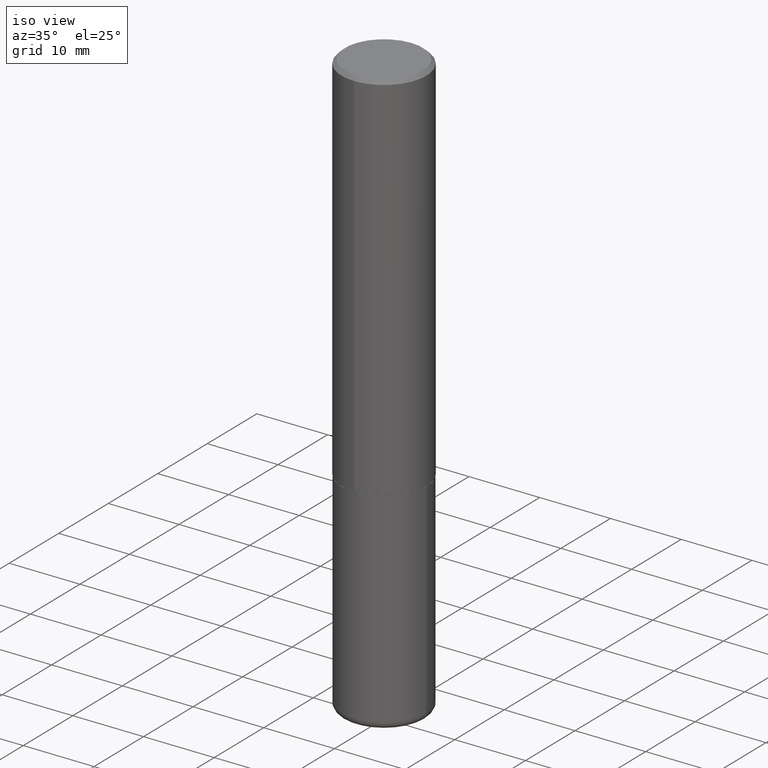
[diagram: clean part render]
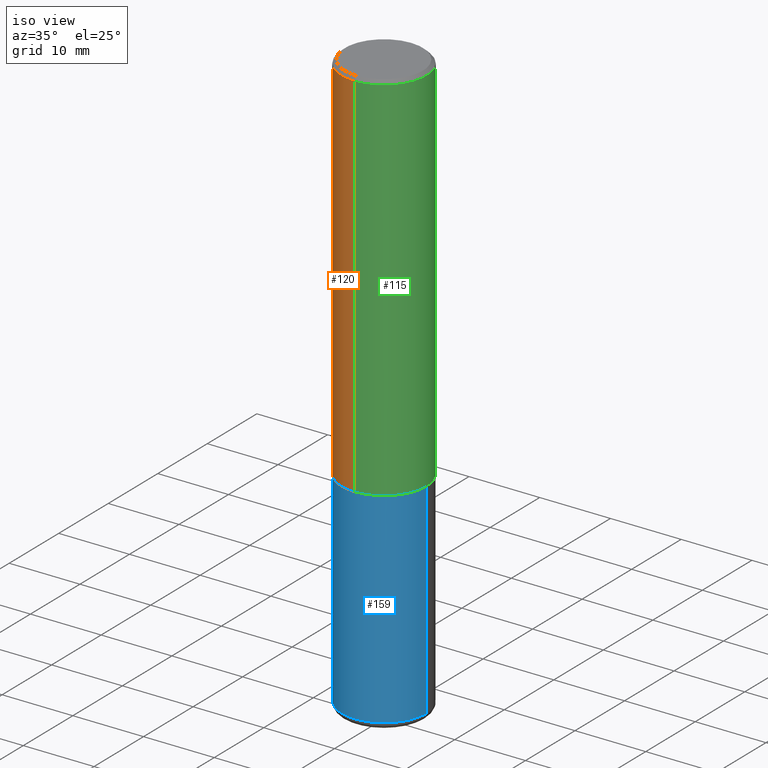
[diagram: same view with three faces highlighted in distinct colors, each labeled with its STEP entity id]
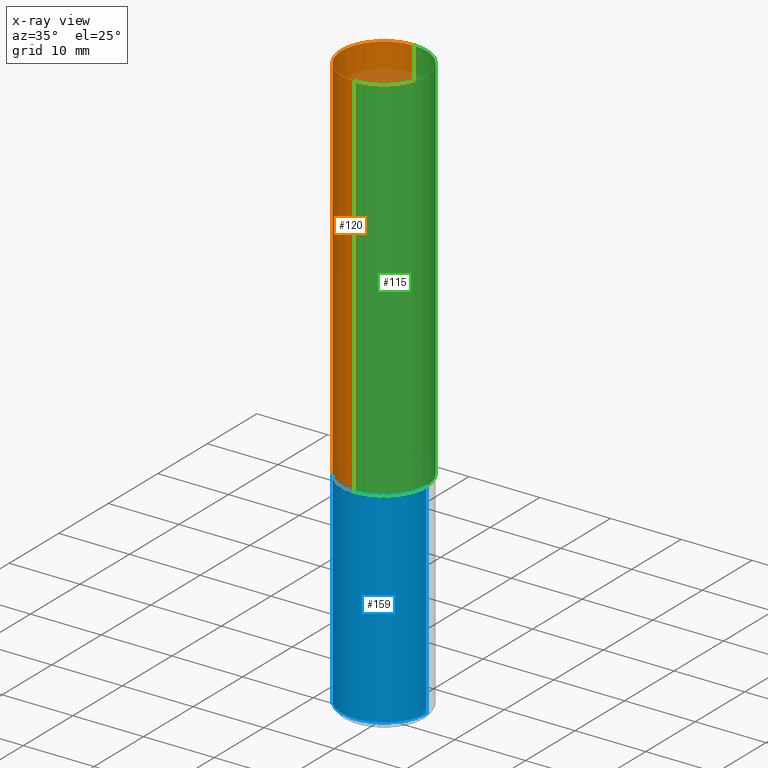
[diagram: x-ray of the same camera — body ghosted, the three highlighted faces saturated]
A machine part, iso view with three faces highlighted in distinct colors.
The next image is the same camera in x-ray (body ghosted, the three faces saturated) — at least one of them is partly hidden behind the body in this view.
Their STEP definitions:

[orange] entity #120 — the highlighted cylindrical surface (partial cylindrical patch) has radius 5.9995 mm, axis along (-0, 0, 1).
#21 = EDGE_CURVE ( 'NONE', #207, #164, #383, .T. ) ;
#44 = ORIENTED_EDGE ( 'NONE', *, *, #265, .F. ) ;
#46 = DIRECTION ( 'NONE',  ( -2.445143257281760563E-29, 3.491947543401872647E-15, 1.000000000000000000 ) ) ;
#56 = DIRECTION ( 'NONE',  ( -2.445143257281760843E-29, 3.491947543401873041E-15, 1.000000000000000000 ) ) ;
#84 = ORIENTED_EDGE ( 'NONE', *, *, #254, .T. ) ;
#98 = CARTESIAN_POINT ( 'NONE',  ( -1.649375784469446630E-15, -0.2362000000000075151, -2.085599999999999010 ) ) ;
#108 = VECTOR ( 'NONE', #313, 39.37007874015748143 ) ;
#114 = ORIENTED_EDGE ( 'NONE', *, *, #21, .T. ) ;
#120 = ADVANCED_FACE ( 'NONE', ( #156 ), #282, .T. ) ;
#123 = DIRECTION ( 'NONE',  ( -2.445143257281760563E-29, 3.491947543401872647E-15, 1.000000000000000000 ) ) ;
#156 = FACE_OUTER_BOUND ( 'NONE', #323, .T. ) ;
#162 = EDGE_CURVE ( 'NONE', #207, #271, #252, .T. ) ;
#164 = VERTEX_POINT ( 'NONE', #98 ) ;
#165 = VERTEX_POINT ( 'NONE', #287 ) ;
#168 = ORIENTED_EDGE ( 'NONE', *, *, #162, .F. ) ;
#179 = CARTESIAN_POINT ( 'NONE',  ( 0.000000000000000000, 0.000000000000000000, 0.000000000000000000 ) ) ;
#195 = CARTESIAN_POINT ( 'NONE',  ( 4.890286514563534438E-31, -6.983895086803762550E-17, -0.02000000000000005246 ) ) ;
#203 = VECTOR ( 'NONE', #56, 39.37007874015748143 ) ;
#207 = VERTEX_POINT ( 'NONE', #339 ) ;
#216 = CARTESIAN_POINT ( 'NONE',  ( -1.649375784469496722E-15, -0.2362000000000001043, 8.247980097515226939E-16 ) ) ;
#235 = DIRECTION ( 'NONE',  ( -2.445143257281760563E-29, 3.491947543401872647E-15, 1.000000000000000000 ) ) ;
#246 = CARTESIAN_POINT ( 'NONE',  ( 5.099590777386840224E-29, -7.282805796518945829E-15, -2.085599999999999898 ) ) ;
#249 = CARTESIAN_POINT ( 'NONE',  ( 1.678301941865357183E-15, 0.2362000000000001043, -8.247980097515226939E-16 ) ) ;
#252 = LINE ( 'NONE', #249, #108 ) ;
#254 = EDGE_CURVE ( 'NONE', #164, #165, #257, .T. ) ;
#257 = LINE ( 'NONE', #216, #203 ) ;
#259 = AXIS2_PLACEMENT_3D ( 'NONE', #246, #235, #302 ) ;
#265 = EDGE_CURVE ( 'NONE', #271, #165, #392, .T. ) ;
#271 = VERTEX_POINT ( 'NONE', #303 ) ;
#275 = DIRECTION ( 'NONE',  ( -6.982962677686265922E-15, -1.000000000000000000, 3.487819265831412139E-15 ) ) ;
#282 = CYLINDRICAL_SURFACE ( 'NONE', #353, 0.2362000000000001043 ) ;
#287 = CARTESIAN_POINT ( 'NONE',  ( -1.620449627073634881E-15, -0.2362000000000000210, -0.01999999999999922673 ) ) ;
#302 = DIRECTION ( 'NONE',  ( -6.982962677686265922E-15, -1.000000000000000000, 3.469747663417773452E-15 ) ) ;
#303 = CARTESIAN_POINT ( 'NONE',  ( 1.649375784469496131E-15, 0.2361999999999998823, -0.02000000000000087472 ) ) ;
#313 = DIRECTION ( 'NONE',  ( -2.445143257281760843E-29, 3.491947543401873041E-15, 1.000000000000000000 ) ) ;
#323 = EDGE_LOOP ( 'NONE', ( #168, #114, #84, #44 ) ) ;
#339 = CARTESIAN_POINT ( 'NONE',  ( 1.678301941865383215E-15, 0.2361999999999929711, -2.085600000000000787 ) ) ;
#342 = DIRECTION ( 'NONE',  ( -6.982962677686265922E-15, -1.000000000000000000, 3.491947543401872647E-15 ) ) ;
#353 = AXIS2_PLACEMENT_3D ( 'NONE', #179, #123, #342 ) ;
#383 = CIRCLE ( 'NONE', #259, 0.2362000000000002431 ) ;
#392 = CIRCLE ( 'NONE', #418, 0.2361999999999999655 ) ;
#418 = AXIS2_PLACEMENT_3D ( 'NONE', #195, #46, #275 ) ;

[blue] entity #159 — the highlighted cylindrical surface (partial cylindrical patch) has radius 5.9995 mm, axis along (-0, 0, 1).
#13 = EDGE_LOOP ( 'NONE', ( #171, #194, #40, #131 ) ) ;
#17 = DIRECTION ( 'NONE',  ( 1.000000000000000000, -6.982962677686265133E-15, 0.000000000000000000 ) ) ;
#23 = CYLINDRICAL_SURFACE ( 'NONE', #372, 0.2361999999999999933 ) ;
#24 = CARTESIAN_POINT ( 'NONE',  ( 0.2362000000000000210, -1.292092499065682375E-14, -3.228299999999999947 ) ) ;
#29 = DIRECTION ( 'NONE',  ( 1.000000000000000000, -6.982962677686265133E-15, 0.000000000000000000 ) ) ;
#40 = ORIENTED_EDGE ( 'NONE', *, *, #380, .T. ) ;
#53 = VERTEX_POINT ( 'NONE', #88 ) ;
#63 = CARTESIAN_POINT ( 'NONE',  ( 0.2361999999999999933, -1.649375784469496131E-15, 1.151752954443000088E-29 ) ) ;
#67 = DIRECTION ( 'NONE',  ( -2.445468806185136877E-29, 3.491481338843145188E-15, 1.000000000000000000 ) ) ;
#69 = CARTESIAN_POINT ( 'NONE',  ( -0.2362000000000000210, -9.593247264321970832E-15, -3.228299999999999947 ) ) ;
#78 = CIRCLE ( 'NONE', #412, 0.2361999999999999933 ) ;
#87 = CARTESIAN_POINT ( 'NONE',  ( -0.2361999999999999933, -7.600135142043360927E-15, -2.086600000000000232 ) ) ;
#88 = CARTESIAN_POINT ( 'NONE',  ( 0.2361999999999999933, -8.934700746099602364E-15, -2.086600000000000232 ) ) ;
#94 = CARTESIAN_POINT ( 'NONE',  ( -0.2361999999999999933, 1.678301941865356591E-15, -1.161852468318208757E-29 ) ) ;
#104 = DIRECTION ( 'NONE',  ( -2.445468806185136877E-29, 3.491481338843145188E-15, 1.000000000000000000 ) ) ;
#112 = CIRCLE ( 'NONE', #310, 0.2361999999999999933 ) ;
#126 = CARTESIAN_POINT ( 'NONE',  ( 0.000000000000000000, 0.000000000000000000, 0.000000000000000000 ) ) ;
#130 = DIRECTION ( 'NONE',  ( -2.445468806185136597E-29, 3.491481338843145583E-15, 1.000000000000000000 ) ) ;
#131 = ORIENTED_EDGE ( 'NONE', *, *, #318, .F. ) ;
#159 = ADVANCED_FACE ( 'NONE', ( #312 ), #23, .T. ) ;
#167 = VECTOR ( 'NONE', #104, 39.37007874015748143 ) ;
#171 = ORIENTED_EDGE ( 'NONE', *, *, #386, .F. ) ;
#175 = DIRECTION ( 'NONE',  ( -2.445468806185136597E-29, 3.491481338843145583E-15, 1.000000000000000000 ) ) ;
#194 = ORIENTED_EDGE ( 'NONE', *, *, #248, .T. ) ;
#206 = CARTESIAN_POINT ( 'NONE',  ( 5.102715210985906276E-29, -7.285324961630107416E-15, -2.086600000000000232 ) ) ;
#226 = DIRECTION ( 'NONE',  ( 1.000000000000000000, -6.982962677686266711E-15, 4.876176775795936353E-29 ) ) ;
#248 = EDGE_CURVE ( 'NONE', #263, #395, #112, .T. ) ;
#263 = VERTEX_POINT ( 'NONE', #69 ) ;
#281 = LINE ( 'NONE', #63, #301 ) ;
#301 = VECTOR ( 'NONE', #67, 39.37007874015748143 ) ;
#310 = AXIS2_PLACEMENT_3D ( 'NONE', #408, #130, #29 ) ;
#312 = FACE_OUTER_BOUND ( 'NONE', #13, .T. ) ;
#318 = EDGE_CURVE ( 'NONE', #332, #53, #78, .T. ) ;
#332 = VERTEX_POINT ( 'NONE', #87 ) ;
#372 = AXIS2_PLACEMENT_3D ( 'NONE', #126, #381, #226 ) ;
#380 = EDGE_CURVE ( 'NONE', #395, #53, #281, .T. ) ;
#381 = DIRECTION ( 'NONE',  ( -2.445468806185136597E-29, 3.491481338843145583E-15, 1.000000000000000000 ) ) ;
#386 = EDGE_CURVE ( 'NONE', #263, #332, #411, .T. ) ;
#395 = VERTEX_POINT ( 'NONE', #24 ) ;
#408 = CARTESIAN_POINT ( 'NONE',  ( 7.894706947007477118E-29, -1.127154920618732880E-14, -3.228299999999999947 ) ) ;
#411 = LINE ( 'NONE', #94, #167 ) ;
#412 = AXIS2_PLACEMENT_3D ( 'NONE', #206, #175, #17 ) ;

[green] entity #115 — the highlighted cylindrical surface (partial cylindrical patch) has radius 5.9995 mm, axis along (-0, 0, 1).
#33 = ORIENTED_EDGE ( 'NONE', *, *, #190, .F. ) ;
#36 = CIRCLE ( 'NONE', #72, 0.2362000000000002431 ) ;
#56 = DIRECTION ( 'NONE',  ( -2.445143257281760843E-29, 3.491947543401873041E-15, 1.000000000000000000 ) ) ;
#64 = CARTESIAN_POINT ( 'NONE',  ( 0.000000000000000000, 0.000000000000000000, 0.000000000000000000 ) ) ;
#70 = ORIENTED_EDGE ( 'NONE', *, *, #291, .T. ) ;
#72 = AXIS2_PLACEMENT_3D ( 'NONE', #118, #331, #341 ) ;
#95 = CARTESIAN_POINT ( 'NONE',  ( 4.890286514563534438E-31, -6.983895086803762550E-17, -0.02000000000000005246 ) ) ;
#98 = CARTESIAN_POINT ( 'NONE',  ( -1.649375784469446630E-15, -0.2362000000000075151, -2.085599999999999010 ) ) ;
#106 = EDGE_LOOP ( 'NONE', ( #70, #388, #33, #262 ) ) ;
#108 = VECTOR ( 'NONE', #313, 39.37007874015748143 ) ;
#115 = ADVANCED_FACE ( 'NONE', ( #406 ), #375, .T. ) ;
#118 = CARTESIAN_POINT ( 'NONE',  ( 5.099590777386840224E-29, -7.282805796518945829E-15, -2.085599999999999898 ) ) ;
#162 = EDGE_CURVE ( 'NONE', #207, #271, #252, .T. ) ;
#164 = VERTEX_POINT ( 'NONE', #98 ) ;
#165 = VERTEX_POINT ( 'NONE', #287 ) ;
#181 = CIRCLE ( 'NONE', #251, 0.2361999999999999655 ) ;
#190 = EDGE_CURVE ( 'NONE', #165, #271, #181, .T. ) ;
#203 = VECTOR ( 'NONE', #56, 39.37007874015748143 ) ;
#207 = VERTEX_POINT ( 'NONE', #339 ) ;
#212 = AXIS2_PLACEMENT_3D ( 'NONE', #64, #280, #223 ) ;
#216 = CARTESIAN_POINT ( 'NONE',  ( -1.649375784469496722E-15, -0.2362000000000001043, 8.247980097515226939E-16 ) ) ;
#223 = DIRECTION ( 'NONE',  ( -6.982962677686265922E-15, -1.000000000000000000, 3.491947543401872647E-15 ) ) ;
#249 = CARTESIAN_POINT ( 'NONE',  ( 1.678301941865357183E-15, 0.2362000000000001043, -8.247980097515226939E-16 ) ) ;
#251 = AXIS2_PLACEMENT_3D ( 'NONE', #95, #346, #307 ) ;
#252 = LINE ( 'NONE', #249, #108 ) ;
#254 = EDGE_CURVE ( 'NONE', #164, #165, #257, .T. ) ;
#257 = LINE ( 'NONE', #216, #203 ) ;
#262 = ORIENTED_EDGE ( 'NONE', *, *, #254, .F. ) ;
#271 = VERTEX_POINT ( 'NONE', #303 ) ;
#280 = DIRECTION ( 'NONE',  ( -2.445143257281760563E-29, 3.491947543401872647E-15, 1.000000000000000000 ) ) ;
#287 = CARTESIAN_POINT ( 'NONE',  ( -1.620449627073634881E-15, -0.2362000000000000210, -0.01999999999999922673 ) ) ;
#291 = EDGE_CURVE ( 'NONE', #164, #207, #36, .T. ) ;
#303 = CARTESIAN_POINT ( 'NONE',  ( 1.649375784469496131E-15, 0.2361999999999998823, -0.02000000000000087472 ) ) ;
#307 = DIRECTION ( 'NONE',  ( -6.982962677686265922E-15, -1.000000000000000000, 3.487819265831412139E-15 ) ) ;
#313 = DIRECTION ( 'NONE',  ( -2.445143257281760843E-29, 3.491947543401873041E-15, 1.000000000000000000 ) ) ;
#331 = DIRECTION ( 'NONE',  ( -2.445143257281760563E-29, 3.491947543401872647E-15, 1.000000000000000000 ) ) ;
#339 = CARTESIAN_POINT ( 'NONE',  ( 1.678301941865383215E-15, 0.2361999999999929711, -2.085600000000000787 ) ) ;
#341 = DIRECTION ( 'NONE',  ( -6.982962677686265922E-15, -1.000000000000000000, 3.469747663417773452E-15 ) ) ;
#346 = DIRECTION ( 'NONE',  ( -2.445143257281760563E-29, 3.491947543401872647E-15, 1.000000000000000000 ) ) ;
#375 = CYLINDRICAL_SURFACE ( 'NONE', #212, 0.2362000000000001043 ) ;
#388 = ORIENTED_EDGE ( 'NONE', *, *, #162, .T. ) ;
#406 = FACE_OUTER_BOUND ( 'NONE', #106, .T. ) ;